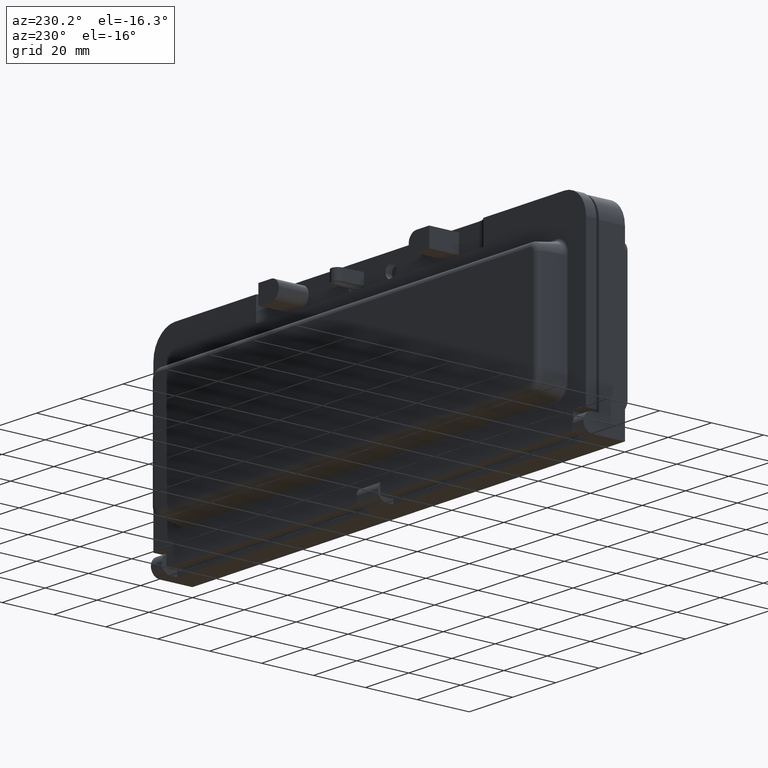
[diagram: clean part render]
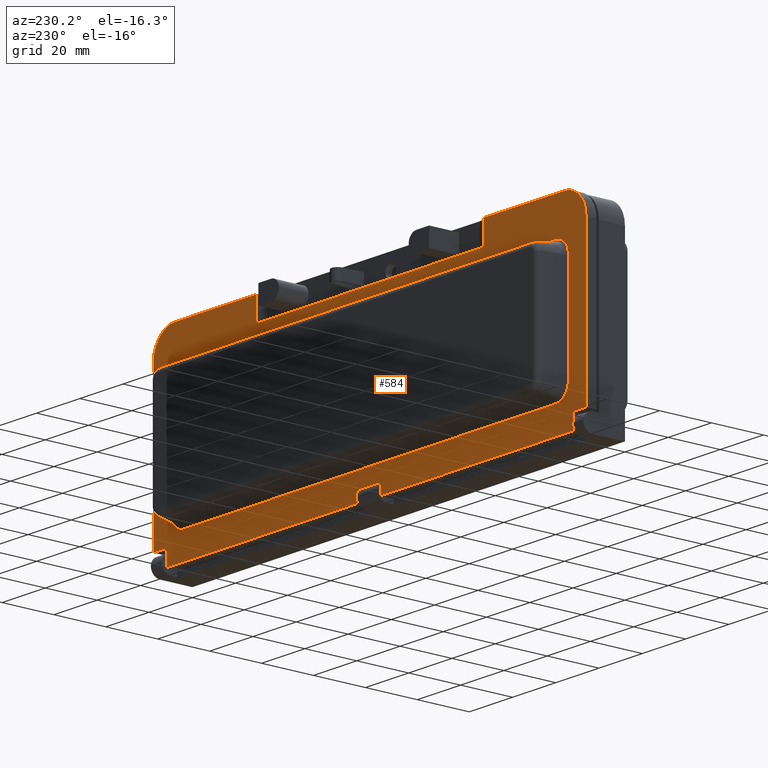
[diagram: same view with one face highlighted and labeled with its STEP entity id]
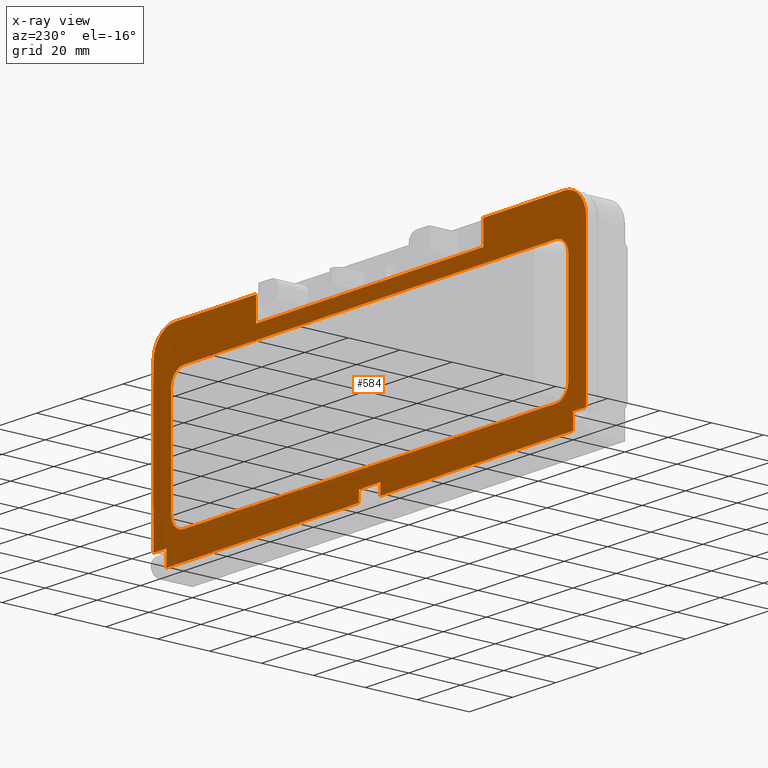
[diagram: x-ray of the same camera — body ghosted, the highlighted face saturated]
A machine part, auxiliary view. The second image highlights one B-rep face of the part: STEP entity #584.
The next image is the same camera in x-ray: the body ghosted, the highlighted face saturated — about 0% of this face is hidden behind the body in this view.
In plain terms, the highlighted planar face has unit normal (0, 1, 0).
Its self-contained STEP definition (entity closure, byte-faithful):
#62 = EDGE_CURVE ( 'NONE', #63, #64, #4112, .T. ) ;
#63 = VERTEX_POINT ( 'NONE', #4107 ) ;
#64 = VERTEX_POINT ( 'NONE', #4105 ) ;
#120 = EDGE_CURVE ( 'NONE', #128, #127, #4495, .T. ) ;
#127 = VERTEX_POINT ( 'NONE', #4589 ) ;
#128 = VERTEX_POINT ( 'NONE', #4586 ) ;
#176 = VERTEX_POINT ( 'NONE', #4858 ) ;
#199 = VERTEX_POINT ( 'NONE', #4964 ) ;
#200 = ORIENTED_EDGE ( 'NONE', *, *, #201, .T. ) ;
#201 = EDGE_CURVE ( 'NONE', #199, #128, #4960, .T. ) ;
#206 = ORIENTED_EDGE ( 'NONE', *, *, #207, .F. ) ;
#207 = EDGE_CURVE ( 'NONE', #176, #238, #4943, .T. ) ;
#208 = ORIENTED_EDGE ( 'NONE', *, *, #536, .T. ) ;
#209 = VERTEX_POINT ( 'NONE', #4938 ) ;
#212 = ORIENTED_EDGE ( 'NONE', *, *, #120, .T. ) ;
#213 = ORIENTED_EDGE ( 'NONE', *, *, #214, .F. ) ;
#214 = EDGE_CURVE ( 'NONE', #501, #127, #4934, .T. ) ;
#215 = EDGE_LOOP ( 'NONE', ( #216, #220, #223, #277, #524, #519, #362, #347 ) ) ;
#216 = ORIENTED_EDGE ( 'NONE', *, *, #217, .T. ) ;
#217 = EDGE_CURVE ( 'NONE', #218, #219, #5042, .T. ) ;
#218 = VERTEX_POINT ( 'NONE', #5038 ) ;
#219 = VERTEX_POINT ( 'NONE', #5037 ) ;
#220 = ORIENTED_EDGE ( 'NONE', *, *, #221, .T. ) ;
#221 = EDGE_CURVE ( 'NONE', #219, #222, #5034, .T. ) ;
#222 = VERTEX_POINT ( 'NONE', #5029 ) ;
#223 = ORIENTED_EDGE ( 'NONE', *, *, #224, .T. ) ;
#224 = EDGE_CURVE ( 'NONE', #222, #225, #5024, .T. ) ;
#225 = VERTEX_POINT ( 'NONE', #5018 ) ;
#232 = EDGE_CURVE ( 'NONE', #409, #411, #4986, .T. ) ;
#233 = ORIENTED_EDGE ( 'NONE', *, *, #234, .T. ) ;
#234 = EDGE_CURVE ( 'NONE', #411, #235, #5098, .T. ) ;
#235 = VERTEX_POINT ( 'NONE', #5093 ) ;
#236 = ORIENTED_EDGE ( 'NONE', *, *, #237, .F. ) ;
#237 = EDGE_CURVE ( 'NONE', #238, #235, #5091, .T. ) ;
#238 = VERTEX_POINT ( 'NONE', #5086 ) ;
#277 = ORIENTED_EDGE ( 'NONE', *, *, #339, .T. ) ;
#338 = EDGE_CURVE ( 'NONE', #340, #518, #5526, .T. ) ;
#339 = EDGE_CURVE ( 'NONE', #225, #340, #5517, .T. ) ;
#340 = VERTEX_POINT ( 'NONE', #5510 ) ;
#347 = ORIENTED_EDGE ( 'NONE', *, *, #348, .T. ) ;
#348 = EDGE_CURVE ( 'NONE', #515, #218, #5603, .T. ) ;
#362 = ORIENTED_EDGE ( 'NONE', *, *, #514, .T. ) ;
#379 = VERTEX_POINT ( 'NONE', #5902 ) ;
#380 = ORIENTED_EDGE ( 'NONE', *, *, #434, .T. ) ;
#407 = ORIENTED_EDGE ( 'NONE', *, *, #408, .T. ) ;
#408 = EDGE_CURVE ( 'NONE', #545, #409, #5930, .T. ) ;
#409 = VERTEX_POINT ( 'NONE', #5926 ) ;
#410 = ORIENTED_EDGE ( 'NONE', *, *, #232, .T. ) ;
#411 = VERTEX_POINT ( 'NONE', #5924 ) ;
#434 = EDGE_CURVE ( 'NONE', #379, #199, #5981, .T. ) ;
#500 = VERTEX_POINT ( 'NONE', #1234 ) ;
#501 = VERTEX_POINT ( 'NONE', #1233 ) ;
#502 = ORIENTED_EDGE ( 'NONE', *, *, #503, .T. ) ;
#503 = EDGE_CURVE ( 'NONE', #500, #63, #1232, .T. ) ;
#504 = ORIENTED_EDGE ( 'NONE', *, *, #62, .T. ) ;
#505 = ORIENTED_EDGE ( 'NONE', *, *, #506, .T. ) ;
#506 = EDGE_CURVE ( 'NONE', #64, #539, #1228, .T. ) ;
#514 = EDGE_CURVE ( 'NONE', #517, #515, #1270, .T. ) ;
#515 = VERTEX_POINT ( 'NONE', #1266 ) ;
#516 = EDGE_CURVE ( 'NONE', #518, #517, #1265, .T. ) ;
#517 = VERTEX_POINT ( 'NONE', #1260 ) ;
#518 = VERTEX_POINT ( 'NONE', #1259 ) ;
#519 = ORIENTED_EDGE ( 'NONE', *, *, #516, .T. ) ;
#524 = ORIENTED_EDGE ( 'NONE', *, *, #338, .T. ) ;
#536 = EDGE_CURVE ( 'NONE', #176, #209, #1296, .T. ) ;
#537 = ORIENTED_EDGE ( 'NONE', *, *, #538, .T. ) ;
#538 = EDGE_CURVE ( 'NONE', #209, #558, #1292, .T. ) ;
#539 = VERTEX_POINT ( 'NONE', #1288 ) ;
#540 = ORIENTED_EDGE ( 'NONE', *, *, #541, .T. ) ;
#541 = EDGE_CURVE ( 'NONE', #539, #542, #1287, .T. ) ;
#542 = VERTEX_POINT ( 'NONE', #1283 ) ;
#543 = ORIENTED_EDGE ( 'NONE', *, *, #544, .T. ) ;
#544 = EDGE_CURVE ( 'NONE', #542, #545, #1282, .T. ) ;
#545 = VERTEX_POINT ( 'NONE', #1278 ) ;
#558 = VERTEX_POINT ( 'NONE', #1318 ) ;
#559 = ORIENTED_EDGE ( 'NONE', *, *, #560, .T. ) ;
#560 = EDGE_CURVE ( 'NONE', #558, #379, #1317, .T. ) ;
#584 = ADVANCED_FACE ( 'NONE', ( #1383, #1382 ), #1424, .T. ) ;
#585 = EDGE_LOOP ( 'NONE', ( #586, #502, #504, #505, #540, #543, #407, #410, #233, #236, #206, #208, #537, #559, #380, #200, #212, #213 ) ) ;
#586 = ORIENTED_EDGE ( 'NONE', *, *, #587, .F. ) ;
#587 = EDGE_CURVE ( 'NONE', #500, #501, #1419, .T. ) ;
#1224 = DIRECTION ( 'NONE',  ( 0.0000000000000000000, 0.0000000000000000000, 1.000000000000000000 ) ) ;
#1225 = DIRECTION ( 'NONE',  ( 0.0000000000000000000, 1.000000000000000000, 0.0000000000000000000 ) ) ;
#1226 = CARTESIAN_POINT ( 'NONE',  ( 90.00000000000001400, 15.00000000000000000, 28.54999999999999400 ) ) ;
#1227 = AXIS2_PLACEMENT_3D ( 'NONE', #1226, #1225, #1224 ) ;
#1228 = CIRCLE ( 'NONE', #1227, 10.00000000000000200 ) ;
#1229 = DIRECTION ( 'NONE',  ( 0.0000000000000000000, 0.0000000000000000000, 1.000000000000000000 ) ) ;
#1230 = VECTOR ( 'NONE', #1229, 1000.000000000000000 ) ;
#1231 = CARTESIAN_POINT ( 'NONE',  ( 52.49999999999999300, 15.00000000000000000, 1.050000000000017600 ) ) ;
#1232 = LINE ( 'NONE', #1231, #1230 ) ;
#1233 = CARTESIAN_POINT ( 'NONE',  ( -52.50000000000000700, 15.00000000000000000, 29.54999999999999400 ) ) ;
#1234 = CARTESIAN_POINT ( 'NONE',  ( 52.50000000000002100, 15.00000000000000000, 29.54999999999999400 ) ) ;
#1259 = CARTESIAN_POINT ( 'NONE',  ( -91.83909963117729100, 15.00000000000000000, -20.44999999999998200 ) ) ;
#1260 = CARTESIAN_POINT ( 'NONE',  ( -86.00000000000000000, 15.00000000000000000, -26.28909963117725800 ) ) ;
#1261 = DIRECTION ( 'NONE',  ( 0.0000000000000000000, 0.0000000000000000000, 1.000000000000000000 ) ) ;
#1262 = DIRECTION ( 'NONE',  ( -0.0000000000000000000, -1.000000000000000000, -0.0000000000000000000 ) ) ;
#1263 = CARTESIAN_POINT ( 'NONE',  ( -86.00000000000000000, 15.00000000000000000, -20.44999999999998200 ) ) ;
#1264 = AXIS2_PLACEMENT_3D ( 'NONE', #1263, #1262, #1261 ) ;
#1265 = CIRCLE ( 'NONE', #1264, 5.839099631177281100 ) ;
#1266 = CARTESIAN_POINT ( 'NONE',  ( 86.00000000000000000, 15.00000000000000000, -26.28909963117728300 ) ) ;
#1267 = DIRECTION ( 'NONE',  ( 1.000000000000000000, 0.0000000000000000000, -1.210272192541958400E-016 ) ) ;
#1268 = VECTOR ( 'NONE', #1267, 1000.000000000000000 ) ;
#1269 = CARTESIAN_POINT ( 'NONE',  ( -90.00000000000001400, 15.00000000000000000, -26.28909963117725800 ) ) ;
#1270 = LINE ( 'NONE', #1269, #1268 ) ;
#1278 = CARTESIAN_POINT ( 'NONE',  ( 94.00000000000008500, 15.00000000000000000, -30.45000000000000600 ) ) ;
#1279 = DIRECTION ( 'NONE',  ( -1.000000000000000000, 0.0000000000000000000, 0.0000000000000000000 ) ) ;
#1280 = VECTOR ( 'NONE', #1279, 1000.000000000000000 ) ;
#1281 = CARTESIAN_POINT ( 'NONE',  ( 100.0000000000000000, 15.00000000000000000, -30.45000000000000600 ) ) ;
#1282 = LINE ( 'NONE', #1281, #1280 ) ;
#1283 = CARTESIAN_POINT ( 'NONE',  ( 100.0000000000000000, 15.00000000000000000, -30.45000000000000600 ) ) ;
#1284 = DIRECTION ( 'NONE',  ( 0.0000000000000000000, 0.0000000000000000000, -1.000000000000000000 ) ) ;
#1285 = VECTOR ( 'NONE', #1284, 1000.000000000000000 ) ;
#1286 = CARTESIAN_POINT ( 'NONE',  ( 100.0000000000000000, 15.00000000000000000, 28.54999999999999400 ) ) ;
#1287 = LINE ( 'NONE', #1286, #1285 ) ;
#1288 = CARTESIAN_POINT ( 'NONE',  ( 100.0000000000000000, 15.00000000000000000, 28.54999999999999400 ) ) ;
#1289 = DIRECTION ( 'NONE',  ( -0.0000000000000000000, -0.0000000000000000000, 1.000000000000000000 ) ) ;
#1290 = VECTOR ( 'NONE', #1289, 1000.000000000000000 ) ;
#1291 = CARTESIAN_POINT ( 'NONE',  ( -94.00000000000008500, 15.00000000000000000, -30.45000000000000600 ) ) ;
#1292 = LINE ( 'NONE', #1291, #1290 ) ;
#1293 = DIRECTION ( 'NONE',  ( -1.000000000000000000, 0.0000000000000000000, 0.0000000000000000000 ) ) ;
#1294 = VECTOR ( 'NONE', #1293, 1000.000000000000000 ) ;
#1295 = CARTESIAN_POINT ( 'NONE',  ( 94.00000000000008500, 15.00000000000000000, -36.45000000000000300 ) ) ;
#1296 = LINE ( 'NONE', #1295, #1294 ) ;
#1314 = DIRECTION ( 'NONE',  ( -1.000000000000000000, 0.0000000000000000000, 0.0000000000000000000 ) ) ;
#1315 = VECTOR ( 'NONE', #1314, 1000.000000000000000 ) ;
#1316 = CARTESIAN_POINT ( 'NONE',  ( -94.00000000000008500, 15.00000000000000000, -30.45000000000000600 ) ) ;
#1317 = LINE ( 'NONE', #1316, #1315 ) ;
#1318 = CARTESIAN_POINT ( 'NONE',  ( -94.00000000000008500, 15.00000000000000000, -30.45000000000000600 ) ) ;
#1382 = FACE_BOUND ( 'NONE', #215, .T. ) ;
#1383 = FACE_OUTER_BOUND ( 'NONE', #585, .T. ) ;
#1416 = DIRECTION ( 'NONE',  ( -1.000000000000000000, 0.0000000000000000000, 0.0000000000000000000 ) ) ;
#1417 = VECTOR ( 'NONE', #1416, 1000.000000000000000 ) ;
#1418 = CARTESIAN_POINT ( 'NONE',  ( 11.50000000000000000, 15.00000000000000000, 29.54999999999999400 ) ) ;
#1419 = LINE ( 'NONE', #1418, #1417 ) ;
#1420 = DIRECTION ( 'NONE',  ( 0.0000000000000000000, -0.0000000000000000000, 1.000000000000000000 ) ) ;
#1421 = DIRECTION ( 'NONE',  ( 0.0000000000000000000, 1.000000000000000000, 0.0000000000000000000 ) ) ;
#1422 = CARTESIAN_POINT ( 'NONE',  ( -90.00000000000001400, 15.00000000000000000, 28.54999999999999400 ) ) ;
#1423 = AXIS2_PLACEMENT_3D ( 'NONE', #1422, #1421, #1420 ) ;
#1424 = PLANE ( 'NONE',  #1423 ) ;
#4105 = CARTESIAN_POINT ( 'NONE',  ( 90.00000000000001400, 15.00000000000000000, 38.55000000000000400 ) ) ;
#4107 = CARTESIAN_POINT ( 'NONE',  ( 52.50000000000002100, 15.00000000000000000, 38.55000000000000400 ) ) ;
#4108 = DIRECTION ( 'NONE',  ( 1.000000000000000000, -0.0000000000000000000, -0.0000000000000000000 ) ) ;
#4109 = VECTOR ( 'NONE', #4108, 1000.000000000000000 ) ;
#4110 = CARTESIAN_POINT ( 'NONE',  ( 90.00000000000001400, 15.00000000000000000, 38.55000000000000400 ) ) ;
#4112 = LINE ( 'NONE', #4110, #4109 ) ;
#4491 = DIRECTION ( 'NONE',  ( 1.000000000000000000, -0.0000000000000000000, -0.0000000000000000000 ) ) ;
#4492 = VECTOR ( 'NONE', #4491, 1000.000000000000000 ) ;
#4494 = CARTESIAN_POINT ( 'NONE',  ( 90.00000000000001400, 15.00000000000000000, 38.55000000000000400 ) ) ;
#4495 = LINE ( 'NONE', #4494, #4492 ) ;
#4586 = CARTESIAN_POINT ( 'NONE',  ( -90.00000000000001400, 15.00000000000000000, 38.54999999999999700 ) ) ;
#4589 = CARTESIAN_POINT ( 'NONE',  ( -52.50000000000000700, 15.00000000000000000, 38.55000000000000400 ) ) ;
#4858 = CARTESIAN_POINT ( 'NONE',  ( -5.000000000000000000, 15.00000000000000000, -36.45000000000000300 ) ) ;
#4931 = DIRECTION ( 'NONE',  ( 0.0000000000000000000, 0.0000000000000000000, 1.000000000000000000 ) ) ;
#4932 = VECTOR ( 'NONE', #4931, 1000.000000000000000 ) ;
#4933 = CARTESIAN_POINT ( 'NONE',  ( -52.50000000000000700, 15.00000000000000000, 1.050000000000017600 ) ) ;
#4934 = LINE ( 'NONE', #4933, #4932 ) ;
#4938 = CARTESIAN_POINT ( 'NONE',  ( -94.00000000000008500, 15.00000000000000000, -36.45000000000000300 ) ) ;
#4939 = DIRECTION ( 'NONE',  ( 0.0000000000000000000, 0.0000000000000000000, 1.000000000000000000 ) ) ;
#4941 = VECTOR ( 'NONE', #4939, 1000.000000000000000 ) ;
#4942 = CARTESIAN_POINT ( 'NONE',  ( -5.000000000000000000, 15.00000000000000000, -34.75000000000000000 ) ) ;
#4943 = LINE ( 'NONE', #4942, #4941 ) ;
#4952 = DIRECTION ( 'NONE',  ( 0.0000000000000000000, 0.0000000000000000000, 1.000000000000000000 ) ) ;
#4954 = DIRECTION ( 'NONE',  ( 0.0000000000000000000, 1.000000000000000000, 0.0000000000000000000 ) ) ;
#4956 = CARTESIAN_POINT ( 'NONE',  ( -90.00000000000001400, 15.00000000000000000, 28.54999999999999400 ) ) ;
#4958 = AXIS2_PLACEMENT_3D ( 'NONE', #4956, #4954, #4952 ) ;
#4960 = CIRCLE ( 'NONE', #4958, 10.00000000000000200 ) ;
#4964 = CARTESIAN_POINT ( 'NONE',  ( -100.0000000000000000, 15.00000000000000000, 28.54999999999999400 ) ) ;
#4983 = DIRECTION ( 'NONE',  ( -1.000000000000000000, 0.0000000000000000000, 0.0000000000000000000 ) ) ;
#4984 = VECTOR ( 'NONE', #4983, 1000.000000000000000 ) ;
#4985 = CARTESIAN_POINT ( 'NONE',  ( 94.00000000000008500, 15.00000000000000000, -36.45000000000000300 ) ) ;
#4986 = LINE ( 'NONE', #4985, #4984 ) ;
#5018 = CARTESIAN_POINT ( 'NONE',  ( -86.00000000000000000, 15.00000000000000000, 24.38909963117730200 ) ) ;
#5020 = DIRECTION ( 'NONE',  ( -1.000000000000000000, 0.0000000000000000000, 1.210272192541958400E-016 ) ) ;
#5022 = VECTOR ( 'NONE', #5020, 1000.000000000000000 ) ;
#5023 = CARTESIAN_POINT ( 'NONE',  ( -90.00000000000001400, 15.00000000000000000, 24.38909963117730200 ) ) ;
#5024 = LINE ( 'NONE', #5023, #5022 ) ;
#5029 = CARTESIAN_POINT ( 'NONE',  ( 86.00000000000000000, 15.00000000000000000, 24.38909963117728100 ) ) ;
#5030 = DIRECTION ( 'NONE',  ( 0.0000000000000000000, 0.0000000000000000000, 1.000000000000000000 ) ) ;
#5031 = DIRECTION ( 'NONE',  ( -0.0000000000000000000, -1.000000000000000000, -0.0000000000000000000 ) ) ;
#5032 = CARTESIAN_POINT ( 'NONE',  ( 86.00000000000000000, 15.00000000000000000, 18.54999999999999700 ) ) ;
#5033 = AXIS2_PLACEMENT_3D ( 'NONE', #5032, #5031, #5030 ) ;
#5034 = CIRCLE ( 'NONE', #5033, 5.839099631177284700 ) ;
#5037 = CARTESIAN_POINT ( 'NONE',  ( 91.83909963117730500, 15.00000000000000000, 18.54999999999999700 ) ) ;
#5038 = CARTESIAN_POINT ( 'NONE',  ( 91.83909963117730500, 15.00000000000000000, -20.45000000000000300 ) ) ;
#5039 = DIRECTION ( 'NONE',  ( 0.0000000000000000000, -0.0000000000000000000, 1.000000000000000000 ) ) ;
#5040 = VECTOR ( 'NONE', #5039, 1000.000000000000000 ) ;
#5041 = CARTESIAN_POINT ( 'NONE',  ( 91.83909963117730500, 15.00000000000000000, 28.54999999999999400 ) ) ;
#5042 = LINE ( 'NONE', #5041, #5040 ) ;
#5086 = CARTESIAN_POINT ( 'NONE',  ( -5.000000000000000000, 15.00000000000000000, -32.30051025721682800 ) ) ;
#5088 = DIRECTION ( 'NONE',  ( 1.000000000000000000, 0.0000000000000000000, 0.0000000000000000000 ) ) ;
#5089 = VECTOR ( 'NONE', #5088, 1000.000000000000000 ) ;
#5090 = CARTESIAN_POINT ( 'NONE',  ( 5.000000000000000000, 15.00000000000000000, -32.30051025721682800 ) ) ;
#5091 = LINE ( 'NONE', #5090, #5089 ) ;
#5093 = CARTESIAN_POINT ( 'NONE',  ( 5.000000000000000000, 15.00000000000000000, -32.30051025721682800 ) ) ;
#5094 = DIRECTION ( 'NONE',  ( 0.0000000000000000000, 0.0000000000000000000, 1.000000000000000000 ) ) ;
#5096 = VECTOR ( 'NONE', #5094, 1000.000000000000000 ) ;
#5097 = CARTESIAN_POINT ( 'NONE',  ( 5.000000000000000000, 15.00000000000000000, -34.75000000000000000 ) ) ;
#5098 = LINE ( 'NONE', #5097, #5096 ) ;
#5510 = CARTESIAN_POINT ( 'NONE',  ( -91.83909963117730500, 15.00000000000000000, 18.55000000000001800 ) ) ;
#5511 = DIRECTION ( 'NONE',  ( 0.0000000000000000000, 0.0000000000000000000, 1.000000000000000000 ) ) ;
#5512 = DIRECTION ( 'NONE',  ( -0.0000000000000000000, -1.000000000000000000, -0.0000000000000000000 ) ) ;
#5513 = CARTESIAN_POINT ( 'NONE',  ( -86.00000000000000000, 15.00000000000000000, 18.55000000000001800 ) ) ;
#5515 = AXIS2_PLACEMENT_3D ( 'NONE', #5513, #5512, #5511 ) ;
#5517 = CIRCLE ( 'NONE', #5515, 5.839099631177284700 ) ;
#5523 = DIRECTION ( 'NONE',  ( 0.0000000000000000000, 0.0000000000000000000, -1.000000000000000000 ) ) ;
#5524 = VECTOR ( 'NONE', #5523, 1000.000000000000000 ) ;
#5525 = CARTESIAN_POINT ( 'NONE',  ( -91.83909963117730500, 15.00000000000000000, 28.54999999999999400 ) ) ;
#5526 = LINE ( 'NONE', #5525, #5524 ) ;
#5598 = DIRECTION ( 'NONE',  ( 0.0000000000000000000, 0.0000000000000000000, 1.000000000000000000 ) ) ;
#5599 = DIRECTION ( 'NONE',  ( -0.0000000000000000000, -1.000000000000000000, -0.0000000000000000000 ) ) ;
#5600 = CARTESIAN_POINT ( 'NONE',  ( 86.00000000000000000, 15.00000000000000000, -20.45000000000000300 ) ) ;
#5601 = AXIS2_PLACEMENT_3D ( 'NONE', #5600, #5599, #5598 ) ;
#5603 = CIRCLE ( 'NONE', #5601, 5.839099631177281100 ) ;
#5902 = CARTESIAN_POINT ( 'NONE',  ( -100.0000000000000000, 15.00000000000000000, -30.45000000000000600 ) ) ;
#5924 = CARTESIAN_POINT ( 'NONE',  ( 5.000000000000000000, 15.00000000000000000, -36.45000000000000300 ) ) ;
#5926 = CARTESIAN_POINT ( 'NONE',  ( 94.00000000000008500, 15.00000000000000000, -36.45000000000000300 ) ) ;
#5927 = DIRECTION ( 'NONE',  ( 0.0000000000000000000, 0.0000000000000000000, -1.000000000000000000 ) ) ;
#5928 = VECTOR ( 'NONE', #5927, 1000.000000000000000 ) ;
#5929 = CARTESIAN_POINT ( 'NONE',  ( 94.00000000000008500, 15.00000000000000000, -30.45000000000000600 ) ) ;
#5930 = LINE ( 'NONE', #5929, #5928 ) ;
#5978 = DIRECTION ( 'NONE',  ( -0.0000000000000000000, -0.0000000000000000000, 1.000000000000000000 ) ) ;
#5979 = VECTOR ( 'NONE', #5978, 1000.000000000000000 ) ;
#5980 = CARTESIAN_POINT ( 'NONE',  ( -100.0000000000000000, 15.00000000000000000, 28.54999999999999400 ) ) ;
#5981 = LINE ( 'NONE', #5980, #5979 ) ;